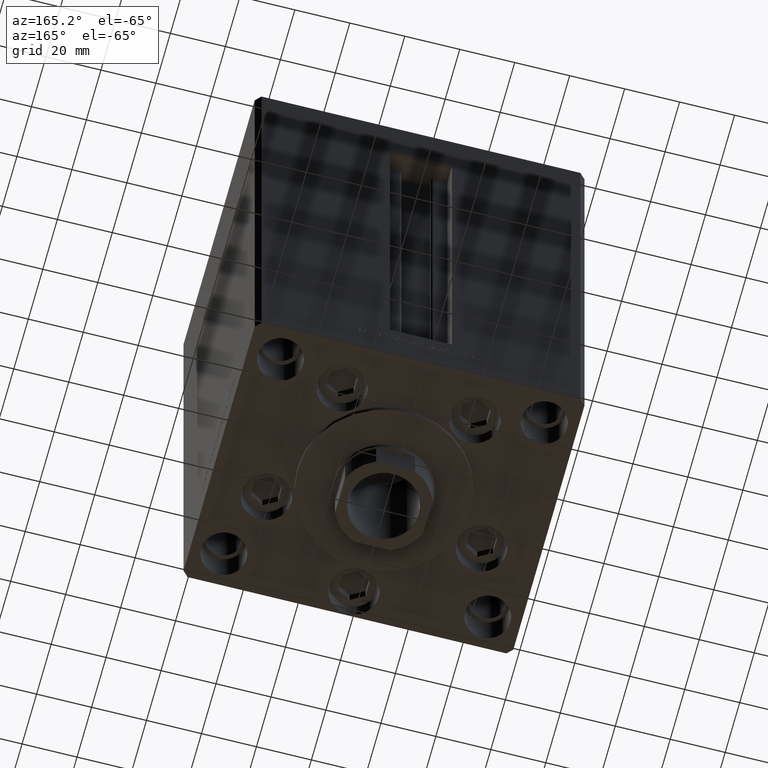
[diagram: clean part render]
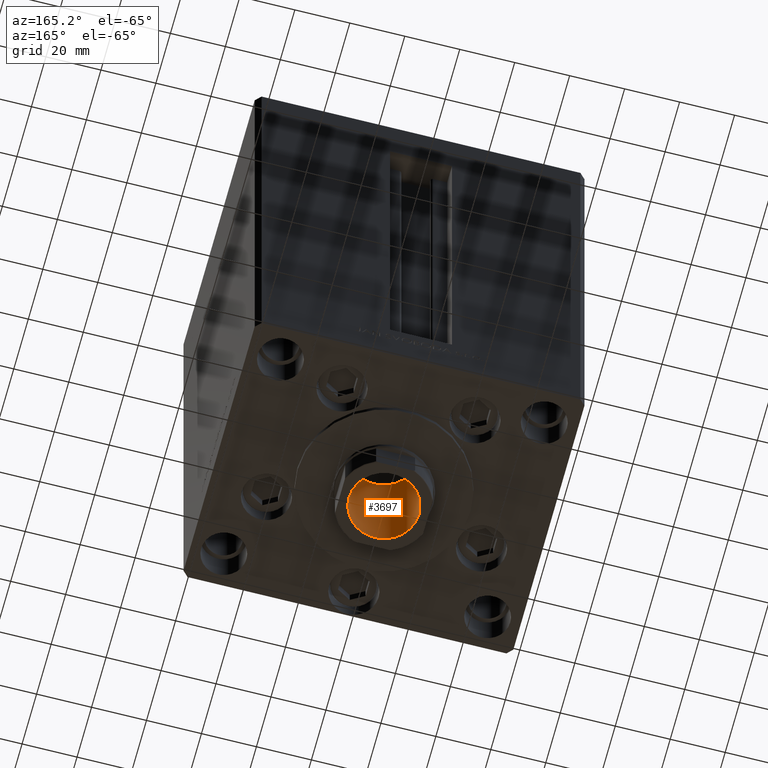
[diagram: same view with one face highlighted and labeled with its STEP entity id]
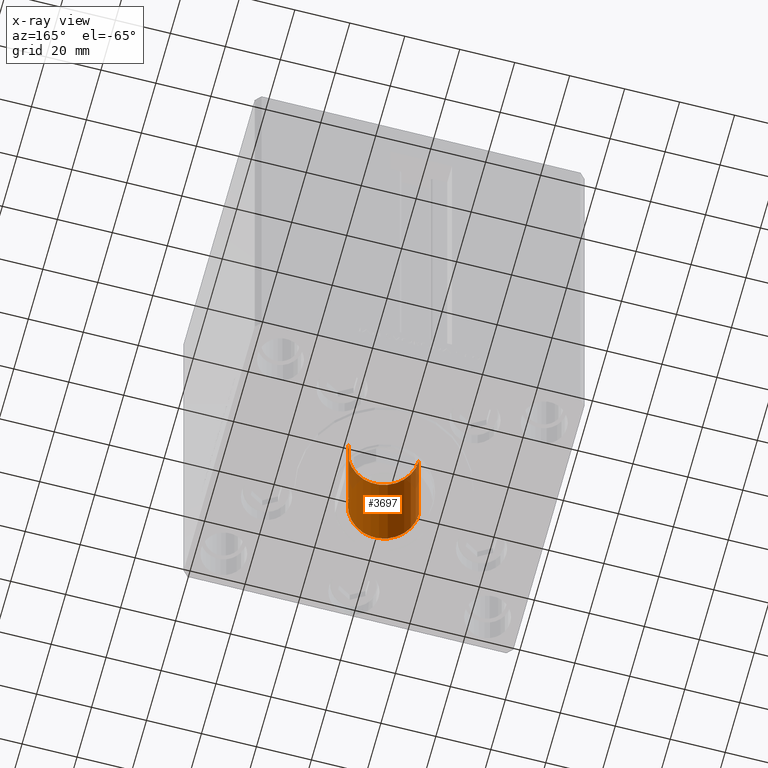
[diagram: x-ray of the same camera — body ghosted, the highlighted face saturated]
A machine part, auxiliary view. The second image highlights one B-rep face of the part: STEP entity #3697.
The next image is the same camera in x-ray: the body ghosted, the highlighted face saturated — about 9% of this face is hidden behind the body in this view.
In plain terms, the highlighted cylindrical surface (edge-blend (fillet) strip) has radius 12.75 mm, axis along (0, 0, -1).
Its self-contained STEP definition (entity closure, byte-faithful):
#534 = AXIS2_PLACEMENT_3D ( 'NONE', #37889, #3847, #30437 ) ;
#3473 = DIRECTION ( 'NONE',  ( -0.000000000000000000, -0.000000000000000000, 1.000000000000000000 ) ) ;
#3608 = AXIS2_PLACEMENT_3D ( 'NONE', #39364, #15521, #30688 ) ;
#3697 = ADVANCED_FACE ( 'NONE', ( #9063 ), #24206, .F. ) ;
#3847 = DIRECTION ( 'NONE',  ( -0.000000000000000000, -0.000000000000000000, 1.000000000000000000 ) ) ;
#3889 = VECTOR ( 'NONE', #3473, 1000.000000000000000 ) ;
#4361 = DIRECTION ( 'NONE',  ( 0.000000000000000000, 0.000000000000000000, 1.000000000000000000 ) ) ;
#5392 = VERTEX_POINT ( 'NONE', #21616 ) ;
#5443 = ORIENTED_EDGE ( 'NONE', *, *, #16474, .F. ) ;
#8076 = CARTESIAN_POINT ( 'NONE',  ( -12.74999999999999467, 1.561424668912874519E-15, 168.9499999999999602 ) ) ;
#8082 = EDGE_CURVE ( 'NONE', #5392, #38928, #14070, .T. ) ;
#8787 = ORIENTED_EDGE ( 'NONE', *, *, #33659, .T. ) ;
#9063 = FACE_OUTER_BOUND ( 'NONE', #10728, .T. ) ;
#10728 = EDGE_LOOP ( 'NONE', ( #23515, #8787, #13660, #5443 ) ) ;
#11577 = CARTESIAN_POINT ( 'NONE',  ( 0.000000000000000000, 0.000000000000000000, 168.9499999999999602 ) ) ;
#13540 = CARTESIAN_POINT ( 'NONE',  ( 12.74999999999999467, 0.000000000000000000, 168.9499999999999602 ) ) ;
#13660 = ORIENTED_EDGE ( 'NONE', *, *, #39670, .T. ) ;
#14037 = CIRCLE ( 'NONE', #41038, 12.74999999999999467 ) ;
#14070 = CIRCLE ( 'NONE', #534, 12.74999999999999112 ) ;
#14751 = LINE ( 'NONE', #29921, #20147 ) ;
#15521 = DIRECTION ( 'NONE',  ( -0.000000000000000000, -0.000000000000000000, 1.000000000000000000 ) ) ;
#16474 = EDGE_CURVE ( 'NONE', #38928, #22558, #26339, .T. ) ;
#20147 = VECTOR ( 'NONE', #29680, 1000.000000000000000 ) ;
#21616 = CARTESIAN_POINT ( 'NONE',  ( -12.74999999999999112, 1.561424668912874125E-15, 124.2500000000000142 ) ) ;
#22558 = VERTEX_POINT ( 'NONE', #13540 ) ;
#23515 = ORIENTED_EDGE ( 'NONE', *, *, #8082, .F. ) ;
#24206 = CYLINDRICAL_SURFACE ( 'NONE', #3608, 12.74999999999999467 ) ;
#26339 = LINE ( 'NONE', #33551, #3889 ) ;
#28901 = CARTESIAN_POINT ( 'NONE',  ( 12.74999999999999112, 0.000000000000000000, 124.2500000000000142 ) ) ;
#29680 = DIRECTION ( 'NONE',  ( -0.000000000000000000, -0.000000000000000000, 1.000000000000000000 ) ) ;
#29921 = CARTESIAN_POINT ( 'NONE',  ( -12.74999999999999467, 1.561424668912874519E-15, 169.2500000000000000 ) ) ;
#30437 = DIRECTION ( 'NONE',  ( 1.000000000000000000, 0.000000000000000000, 0.000000000000000000 ) ) ;
#30688 = DIRECTION ( 'NONE',  ( 1.000000000000000000, 0.000000000000000000, 0.000000000000000000 ) ) ;
#33551 = CARTESIAN_POINT ( 'NONE',  ( 12.74999999999999467, 0.000000000000000000, 169.2500000000000000 ) ) ;
#33659 = EDGE_CURVE ( 'NONE', #5392, #44553, #14751, .T. ) ;
#34674 = DIRECTION ( 'NONE',  ( 1.000000000000000000, 0.000000000000000000, 0.000000000000000000 ) ) ;
#37889 = CARTESIAN_POINT ( 'NONE',  ( 0.000000000000000000, 0.000000000000000000, 124.2500000000000142 ) ) ;
#38928 = VERTEX_POINT ( 'NONE', #28901 ) ;
#39364 = CARTESIAN_POINT ( 'NONE',  ( 0.000000000000000000, 0.000000000000000000, 169.2500000000000000 ) ) ;
#39670 = EDGE_CURVE ( 'NONE', #44553, #22558, #14037, .T. ) ;
#41038 = AXIS2_PLACEMENT_3D ( 'NONE', #11577, #4361, #34674 ) ;
#44553 = VERTEX_POINT ( 'NONE', #8076 ) ;